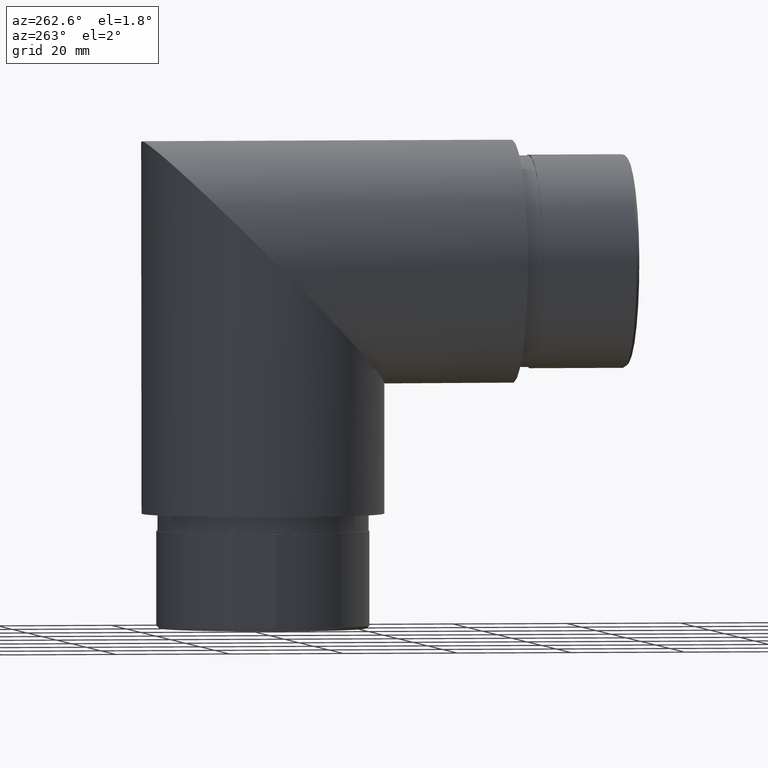
[diagram: clean part render]
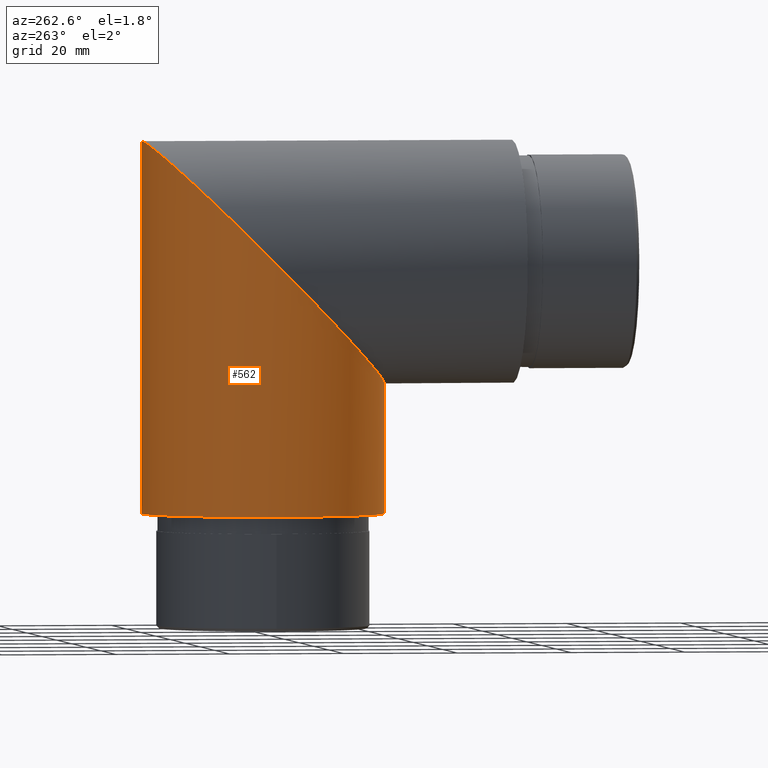
[diagram: same view with one face highlighted and labeled with its STEP entity id]
A machine part, auxiliary view. The second image highlights one B-rep face of the part: STEP entity #562.
In plain terms, the highlighted cylindrical surface (bore or boss wall) has radius 21.2 mm, axis along (0, -0, -1).
Its self-contained STEP definition (entity closure, byte-faithful):
#562 = ADVANCED_FACE ( 'NONE', ( #6283, #1305 ), #5961, .T. ) ;
#597 = EDGE_LOOP ( 'NONE', ( #5299 ) ) ;
#1305 = FACE_OUTER_BOUND ( 'NONE', #6595, .T. ) ;
#1447 = CARTESIAN_POINT ( 'NONE',  ( -2.596251214192388800E-015, 65.00000000000008500, 21.19999999999999900 ) ) ;
#1860 =( BOUNDED_CURVE ( )  B_SPLINE_CURVE ( 3, ( #12225, #10285, #8252, #1447, #3434, #6403, #9278 ),
 .UNSPECIFIED., .T., .F. ) 
 B_SPLINE_CURVE_WITH_KNOTS ( ( 4, 3, 4 ),
 ( 0.0000000000000000000, 3.141592653589793100, 6.283185307179586200 ),
 .UNSPECIFIED. ) 
 CURVE ( )  GEOMETRIC_REPRESENTATION_ITEM ( )  RATIONAL_B_SPLINE_CURVE ( ( 1.000000000000000000, 0.3333333333333333700, 0.3333333333333333700, 1.000000000000000000, 0.3333333333333333700, 0.3333333333333333700, 1.000000000000000000 ) ) 
 REPRESENTATION_ITEM ( '' )  );
#2097 = EDGE_CURVE ( 'NONE', #4432, #4432, #1860, .T. ) ;
#3434 = CARTESIAN_POINT ( 'NONE',  ( 42.39999999999999100, 65.00000000000008500, 21.20000000000000300 ) ) ;
#3672 = EDGE_CURVE ( 'NONE', #7971, #7971, #12253, .T. ) ;
#4432 = VERTEX_POINT ( 'NONE', #11633 ) ;
#4777 = ORIENTED_EDGE ( 'NONE', *, *, #3672, .T. ) ;
#5299 = ORIENTED_EDGE ( 'NONE', *, *, #2097, .T. ) ;
#5532 = DIRECTION ( 'NONE',  ( -0.0000000000000000000, 3.643711410727539500E-015, 1.000000000000000000 ) ) ;
#5627 = AXIS2_PLACEMENT_3D ( 'NONE', #7163, #8540, #7470 ) ;
#5961 = CYLINDRICAL_SURFACE ( 'NONE', #5627, 21.19999999999999600 ) ;
#6283 = FACE_OUTER_BOUND ( 'NONE', #597, .T. ) ;
#6398 = DIRECTION ( 'NONE',  ( 0.0000000000000000000, 1.000000000000000000, -3.600369478442429500E-015 ) ) ;
#6403 = CARTESIAN_POINT ( 'NONE',  ( 42.39999999999999100, 22.59999999999993000, -21.19999999999999900 ) ) ;
#6595 = EDGE_LOOP ( 'NONE', ( #4777 ) ) ;
#7163 = CARTESIAN_POINT ( 'NONE',  ( 0.0000000000000000000, 43.80000000000000400, 0.0000000000000000000 ) ) ;
#7470 = DIRECTION ( 'NONE',  ( 0.0000000000000000000, 1.000000000000000000, -3.643711410727540300E-015 ) ) ;
#7971 = VERTEX_POINT ( 'NONE', #12630 ) ;
#8252 = CARTESIAN_POINT ( 'NONE',  ( -42.39999999999999100, 65.00000000000008500, 21.19999999999999600 ) ) ;
#8540 = DIRECTION ( 'NONE',  ( 0.0000000000000000000, -3.643711410727539500E-015, -1.000000000000000000 ) ) ;
#9278 = CARTESIAN_POINT ( 'NONE',  ( 0.0000000000000000000, 22.59999999999993000, -21.19999999999999900 ) ) ;
#10285 = CARTESIAN_POINT ( 'NONE',  ( -42.39999999999999100, 22.59999999999993000, -21.19999999999999900 ) ) ;
#11521 = AXIS2_PLACEMENT_3D ( 'NONE', #12348, #5532, #6398 ) ;
#11633 = CARTESIAN_POINT ( 'NONE',  ( 0.0000000000000000000, 22.59999999999993000, -21.19999999999999900 ) ) ;
#12225 = CARTESIAN_POINT ( 'NONE',  ( 0.0000000000000000000, 22.59999999999993000, -21.19999999999999900 ) ) ;
#12253 = CIRCLE ( 'NONE', #11521, 21.20000000000000300 ) ;
#12348 = CARTESIAN_POINT ( 'NONE',  ( 0.0000000000000000000, 43.79999999999984800, -43.80000000000000400 ) ) ;
#12630 = CARTESIAN_POINT ( 'NONE',  ( 0.0000000000000000000, 64.99999999999984400, -43.80000000000008200 ) ) ;